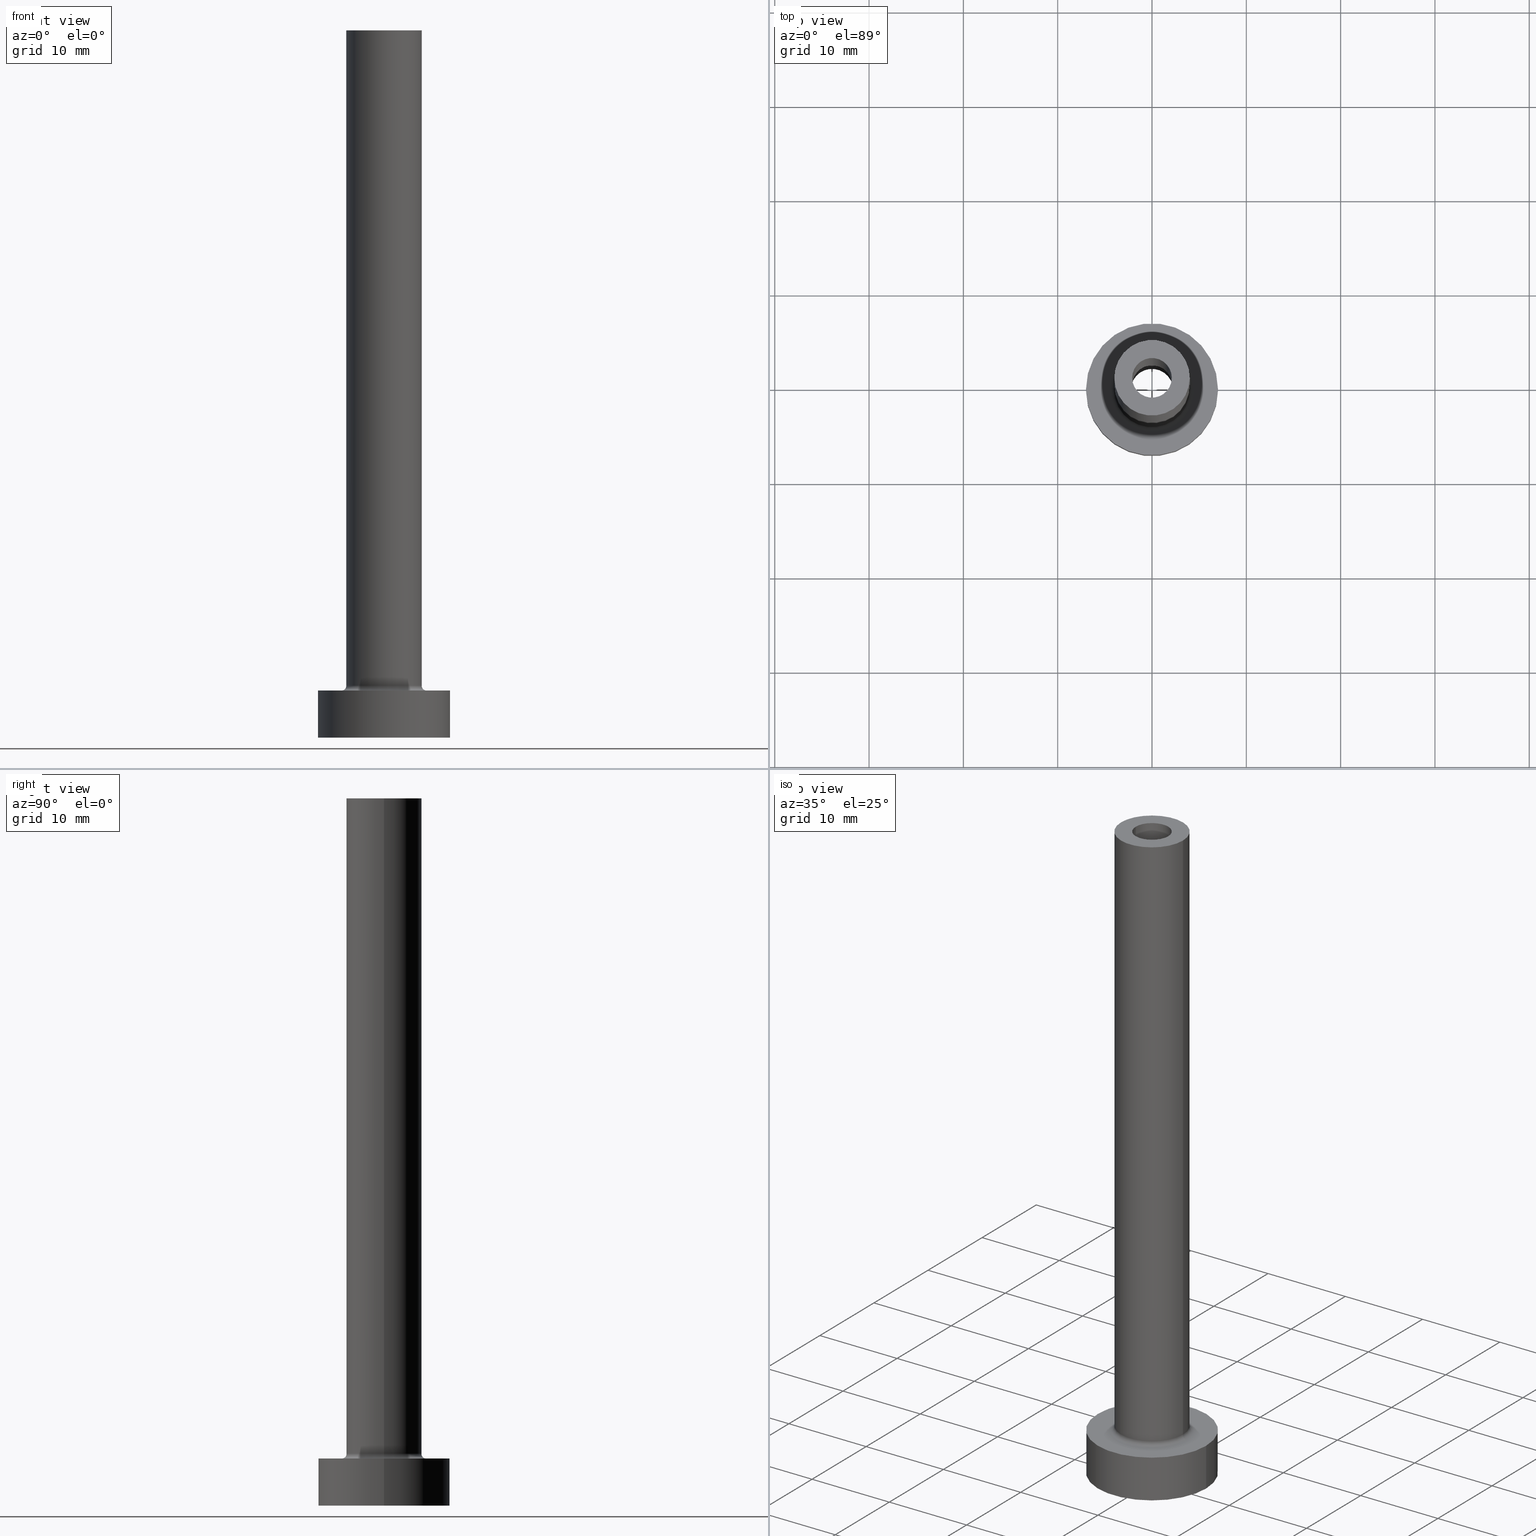
[diagram: canonical four-view strip — front | top / right | iso, engineering-drawing reading convention]
A machine part, canonical four-view strip (front | top / right | iso — engineering-drawing reading convention). The complete STEP part file that produces these views, byte-faithful:
ISO-10303-21;
HEADER;
FILE_DESCRIPTION (( 'STEP AP203' ),
    '1' );
FILE_NAME ('7ac6.STEP',
    '2023-02-13T11:08:08',
    ( '' ),
    ( '' ),
    'SwSTEP 2.0',
    'SolidWorks 2019',
    '' );
FILE_SCHEMA (( 'CONFIG_CONTROL_DESIGN' ));
ENDSEC;

DATA;
#1 = CARTESIAN_POINT ( 'NONE',  ( 0.000000000000000000, 0.000000000000000000, 5.500000000000005329 ) ) ;
#2 = PLANE ( 'NONE',  #117 ) ;
#3 = DIRECTION ( 'NONE',  ( -0.000000000000000000, -0.000000000000000000, -1.000000000000000000 ) ) ;
#4 = ORIENTED_EDGE ( 'NONE', *, *, #248, .F. ) ;
#5 = CLOSED_SHELL ( 'NONE', ( #272, #424, #433, #118, #311, #87, #226, #72, #144, #410, #359, #362, #54, #32 ) ) ;
#6 = ORIENTED_EDGE ( 'NONE', *, *, #180, .F. ) ;
#7 = CIRCLE ( 'NONE', #455, 0.5000000000000004441 ) ;
#8 = CALENDAR_DATE ( 2023, 13, 2 ) ;
#9 = CARTESIAN_POINT ( 'NONE',  ( 0.000000000000000000, 0.000000000000000000, 75.00000000000001421 ) ) ;
#10 = DIRECTION ( 'NONE',  ( 0.000000000000000000, 0.000000000000000000, -1.000000000000000000 ) ) ;
#11 = EDGE_CURVE ( 'NONE', #375, #208, #232, .T. ) ;
#12 = DIRECTION ( 'NONE',  ( -1.000000000000000000, 0.000000000000000000, 0.000000000000000000 ) ) ;
#13 = AXIS2_PLACEMENT_3D ( 'NONE', #141, #327, #408 ) ;
#14 = EDGE_CURVE ( 'NONE', #47, #456, #343, .T. ) ;
#15 = ORIENTED_EDGE ( 'NONE', *, *, #459, .F. ) ;
#16 = VERTEX_POINT ( 'NONE', #176 ) ;
#17 = CIRCLE ( 'NONE', #411, 2.100000000000000089 ) ;
#18 = AXIS2_PLACEMENT_3D ( 'NONE', #86, #168, #460 ) ;
#19 = ORIENTED_EDGE ( 'NONE', *, *, #49, .T. ) ;
#20 = ORIENTED_EDGE ( 'NONE', *, *, #112, .F. ) ;
#21 = CARTESIAN_POINT ( 'NONE',  ( -4.500000000000000888, 5.510910596163089556E-16, 5.500000000000005329 ) ) ;
#22 = DATE_AND_TIME ( #103, #39 ) ;
#23 = EDGE_CURVE ( 'NONE', #314, #198, #58, .T. ) ;
#24 = FACE_OUTER_BOUND ( 'NONE', #320, .T. ) ;
#25 = TOROIDAL_SURFACE ( 'NONE', #119, 4.500000000000000888, 0.5000000000000000000 ) ;
#26 = PRODUCT_DEFINITION ( 'NEZN�M�', '', #335, #441 ) ;
#27 = CARTESIAN_POINT ( 'NONE',  ( 0.000000000000000000, 0.000000000000000000, 5.500000000000005329 ) ) ;
#28 = CARTESIAN_POINT ( 'NONE',  ( 0.000000000000000000, 0.000000000000000000, 75.00000000000001421 ) ) ;
#29 = PERSON_AND_ORGANIZATION ( #246, #60 ) ;
#30 = FACE_BOUND ( 'NONE', #425, .T. ) ;
#31 = DIRECTION ( 'NONE',  ( 0.000000000000000000, 0.000000000000000000, 1.000000000000000000 ) ) ;
#32 = ADVANCED_FACE ( 'NONE', ( #24 ), #391, .F. ) ;
#33 = ORIENTED_EDGE ( 'NONE', *, *, #297, .F. ) ;
#34 = APPLICATION_PROTOCOL_DEFINITION ( 'international standard', 'config_control_design', 1994, #150 ) ;
#35 = DIRECTION ( 'NONE',  ( 1.000000000000000000, 0.000000000000000000, 0.000000000000000000 ) ) ;
#36 = CARTESIAN_POINT ( 'NONE',  ( 0.000000000000000000, 0.000000000000000000, 0.000000000000000000 ) ) ;
#37 = ORIENTED_EDGE ( 'NONE', *, *, #124, .T. ) ;
#38 = CYLINDRICAL_SURFACE ( 'NONE', #77, 4.000000000000000000 ) ;
#39 = LOCAL_TIME ( 12, 8, 8.000000000000000000, #432 ) ;
#40 = EDGE_CURVE ( 'NONE', #93, #303, #160, .T. ) ;
#41 = DIRECTION ( 'NONE',  ( 0.000000000000000000, -1.000000000000000000, 0.000000000000000000 ) ) ;
#42 = PERSON_AND_ORGANIZATION ( #246, #60 ) ;
#43 = CARTESIAN_POINT ( 'NONE',  ( 2.250000000000000000, 2.755455298081544285E-16, 0.000000000000000000 ) ) ;
#44 = EDGE_CURVE ( 'NONE', #303, #93, #165, .T. ) ;
#45 = ORIENTED_EDGE ( 'NONE', *, *, #142, .F. ) ;
#46 = AXIS2_PLACEMENT_3D ( 'NONE', #231, #78, #35 ) ;
#47 = VERTEX_POINT ( 'NONE', #385 ) ;
#48 = ORIENTED_EDGE ( 'NONE', *, *, #269, .F. ) ;
#49 = EDGE_CURVE ( 'NONE', #357, #198, #301, .T. ) ;
#50 = ORIENTED_EDGE ( 'NONE', *, *, #236, .T. ) ;
#51 = AXIS2_PLACEMENT_3D ( 'NONE', #454, #92, #88 ) ;
#52 = CARTESIAN_POINT ( 'NONE',  ( 0.000000000000000000, 0.000000000000000000, 5.500000000000005329 ) ) ;
#53 = EDGE_LOOP ( 'NONE', ( #344, #361 ) ) ;
#54 = ADVANCED_FACE ( 'NONE', ( #30, #218 ), #2, .F. ) ;
#55 = DIRECTION ( 'NONE',  ( 0.000000000000000000, 0.000000000000000000, 1.000000000000000000 ) ) ;
#56 = EDGE_CURVE ( 'NONE', #47, #428, #270, .T. ) ;
#57 =( NAMED_UNIT ( * ) PLANE_ANGLE_UNIT ( ) SI_UNIT ( $, .RADIAN. ) );
#58 = CIRCLE ( 'NONE', #277, 0.5000000000000004441 ) ;
#59 = DIRECTION ( 'NONE',  ( 1.000000000000000000, 0.000000000000000000, 0.000000000000000000 ) ) ;
#60 = ORGANIZATION ( 'NEUR�EN�', 'NEUR�EN�', '' ) ;
#61 = PRODUCT_RELATED_PRODUCT_CATEGORY ( 'detail', '', ( #213 ) ) ;
#62 = DIRECTION ( 'NONE',  ( -1.000000000000000000, 0.000000000000000000, 0.000000000000000000 ) ) ;
#63 = DIRECTION ( 'NONE',  ( 0.000000000000000000, 0.000000000000000000, 1.000000000000000000 ) ) ;
#64 = ORIENTED_EDGE ( 'NONE', *, *, #206, .F. ) ;
#65 = DIRECTION ( 'NONE',  ( -1.000000000000000000, 0.000000000000000000, 0.000000000000000000 ) ) ;
#66 = DIRECTION ( 'NONE',  ( 1.000000000000000000, 0.000000000000000000, 0.000000000000000000 ) ) ;
#67 = CIRCLE ( 'NONE', #238, 7.000000000000000000 ) ;
#68 = LOCAL_TIME ( 12, 8, 8.000000000000000000, #230 ) ;
#69 = ORIENTED_EDGE ( 'NONE', *, *, #449, .T. ) ;
#70 = ORIENTED_EDGE ( 'NONE', *, *, #248, .T. ) ;
#71 = DATE_TIME_ROLE ( 'creation_date' ) ;
#72 = ADVANCED_FACE ( 'NONE', ( #283, #281 ), #317, .F. ) ;
#73 = CARTESIAN_POINT ( 'NONE',  ( 2.100000000000000089, 2.571758278209441464E-16, 75.00000000000001421 ) ) ;
#74 = EDGE_LOOP ( 'NONE', ( #70, #97 ) ) ;
#75 = DATE_AND_TIME ( #8, #161 ) ;
#76 = CARTESIAN_POINT ( 'NONE',  ( 4.500000000000000888, 0.000000000000000000, 5.500000000000005329 ) ) ;
#77 = AXIS2_PLACEMENT_3D ( 'NONE', #110, #184, #12 ) ;
#78 = DIRECTION ( 'NONE',  ( -0.000000000000000000, -0.000000000000000000, -1.000000000000000000 ) ) ;
#79 = DIRECTION ( 'NONE',  ( 0.000000000000000000, 0.000000000000000000, -1.000000000000000000 ) ) ;
#80 = EDGE_LOOP ( 'NONE', ( #257, #324, #291, #373 ) ) ;
#81 = FACE_OUTER_BOUND ( 'NONE', #274, .T. ) ;
#82 = DIRECTION ( 'NONE',  ( -0.000000000000000000, -0.000000000000000000, -1.000000000000000000 ) ) ;
#83 = ORIENTED_EDGE ( 'NONE', *, *, #40, .F. ) ;
#84 = CIRCLE ( 'NONE', #353, 2.100000000000000089 ) ;
#85 = AXIS2_PLACEMENT_3D ( 'NONE', #384, #280, #125 ) ;
#86 = CARTESIAN_POINT ( 'NONE',  ( 0.000000000000000000, 0.000000000000000000, 75.00000000000001421 ) ) ;
#87 = ADVANCED_FACE ( 'NONE', ( #136 ), #427, .T. ) ;
#88 = DIRECTION ( 'NONE',  ( 1.000000000000000000, 0.000000000000000000, -0.000000000000000000 ) ) ;
#89 = EDGE_CURVE ( 'NONE', #254, #16, #17, .T. ) ;
#90 = DIRECTION ( 'NONE',  ( 0.000000000000000000, 0.000000000000000000, 1.000000000000000000 ) ) ;
#91 = FACE_OUTER_BOUND ( 'NONE', #452, .T. ) ;
#92 = DIRECTION ( 'NONE',  ( 0.000000000000000000, 0.000000000000000000, 1.000000000000000000 ) ) ;
#93 = VERTEX_POINT ( 'NONE', #256 ) ;
#94 = LINE ( 'NONE', #249, #224 ) ;
#95 = CC_DESIGN_APPROVAL ( #404, ( #335 ) ) ;
#96 = DIRECTION ( 'NONE',  ( 0.000000000000000000, 0.000000000000000000, 1.000000000000000000 ) ) ;
#97 = ORIENTED_EDGE ( 'NONE', *, *, #11, .T. ) ;
#98 = CC_DESIGN_DATE_AND_TIME_ASSIGNMENT ( #107, #71, ( #26 ) ) ;
#99 = CARTESIAN_POINT ( 'NONE',  ( 0.000000000000000000, 0.000000000000000000, 30.00000000000001421 ) ) ;
#100 = DIRECTION ( 'NONE',  ( 1.000000000000000000, 0.000000000000000000, 0.000000000000000000 ) ) ;
#101 = ORIENTED_EDGE ( 'NONE', *, *, #197, .T. ) ;
#102 = EDGE_LOOP ( 'NONE', ( #389, #15 ) ) ;
#103 = CALENDAR_DATE ( 2023, 13, 2 ) ;
#104 = DIRECTION ( 'NONE',  ( 0.000000000000000000, 0.000000000000000000, 1.000000000000000000 ) ) ;
#105 = ADVANCED_BREP_SHAPE_REPRESENTATION ( '7ac6', ( #306, #339 ), #188 ) ;
#106 = ORIENTED_EDGE ( 'NONE', *, *, #430, .T. ) ;
#107 = DATE_AND_TIME ( #189, #68 ) ;
#108 = CC_DESIGN_PERSON_AND_ORGANIZATION_ASSIGNMENT ( #140, #219, ( #213 ) ) ;
#109 = LINE ( 'NONE', #187, #397 ) ;
#110 = CARTESIAN_POINT ( 'NONE',  ( 0.000000000000000000, 0.000000000000000000, 75.00000000000001421 ) ) ;
#111 = VECTOR ( 'NONE', #10, 1000.000000000000000 ) ;
#112 = EDGE_CURVE ( 'NONE', #127, #209, #84, .T. ) ;
#113 = SECURITY_CLASSIFICATION_LEVEL ( 'unclassified' ) ;
#114 = DIRECTION ( 'NONE',  ( 0.000000000000000000, 0.000000000000000000, -1.000000000000000000 ) ) ;
#115 = CARTESIAN_POINT ( 'NONE',  ( 4.000000000000000000, 4.898587196589412829E-16, 75.00000000000001421 ) ) ;
#116 = CIRCLE ( 'NONE', #46, 2.250000000000000000 ) ;
#117 = AXIS2_PLACEMENT_3D ( 'NONE', #417, #96, #323 ) ;
#118 = ADVANCED_FACE ( 'NONE', ( #126 ), #278, .T. ) ;
#119 = AXIS2_PLACEMENT_3D ( 'NONE', #27, #90, #418 ) ;
#120 = DIRECTION ( 'NONE',  ( -0.000000000000000000, -0.000000000000000000, -1.000000000000000000 ) ) ;
#121 = ORIENTED_EDGE ( 'NONE', *, *, #206, .T. ) ;
#122 = DIRECTION ( 'NONE',  ( 0.000000000000000000, 0.000000000000000000, 1.000000000000000000 ) ) ;
#123 = CIRCLE ( 'NONE', #85, 4.000000000000000000 ) ;
#124 = EDGE_CURVE ( 'NONE', #392, #201, #67, .T. ) ;
#125 = DIRECTION ( 'NONE',  ( 1.000000000000000000, 0.000000000000000000, 0.000000000000000000 ) ) ;
#126 = FACE_OUTER_BOUND ( 'NONE', #139, .T. ) ;
#127 = VERTEX_POINT ( 'NONE', #73 ) ;
#128 = MECHANICAL_CONTEXT ( 'NONE', #150, 'mechanical' ) ;
#129 = DIRECTION ( 'NONE',  ( 0.000000000000000000, 0.000000000000000000, -1.000000000000000000 ) ) ;
#130 = DIRECTION ( 'NONE',  ( 0.000000000000000000, 0.000000000000000000, 1.000000000000000000 ) ) ;
#131 = CARTESIAN_POINT ( 'NONE',  ( 0.000000000000000000, 0.000000000000000000, 36.36396103067894359 ) ) ;
#132 = DIRECTION ( 'NONE',  ( 1.000000000000000000, 0.000000000000000000, 0.000000000000000000 ) ) ;
#133 = EDGE_LOOP ( 'NONE', ( #401, #244, #202, #240 ) ) ;
#134 = CARTESIAN_POINT ( 'NONE',  ( 0.000000000000000000, 0.000000000000000000, 36.36396103067894359 ) ) ;
#135 = APPROVAL_PERSON_ORGANIZATION ( #42, #177, #370 ) ;
#136 = FACE_OUTER_BOUND ( 'NONE', #162, .T. ) ;
#137 = ORIENTED_EDGE ( 'NONE', *, *, #56, .T. ) ;
#138 = CARTESIAN_POINT ( 'NONE',  ( 0.000000000000000000, 0.000000000000000000, 5.000000000000000000 ) ) ;
#139 = EDGE_LOOP ( 'NONE', ( #204, #289, #185, #48 ) ) ;
#140 = PERSON_AND_ORGANIZATION ( #246, #60 ) ;
#141 = CARTESIAN_POINT ( 'NONE',  ( 0.000000000000000000, 0.000000000000000000, 75.00000000000001421 ) ) ;
#142 = EDGE_CURVE ( 'NONE', #201, #392, #195, .T. ) ;
#143 = PERSON_AND_ORGANIZATION_ROLE ( 'classification_officer' ) ;
#144 = ADVANCED_FACE ( 'NONE', ( #400 ), #38, .T. ) ;
#145 = AXIS2_PLACEMENT_3D ( 'NONE', #371, #79, #376 ) ;
#146 = EDGE_LOOP ( 'NONE', ( #45, #451 ) ) ;
#147 = DIRECTION ( 'NONE',  ( 0.000000000000000000, 0.000000000000000000, 1.000000000000000000 ) ) ;
#148 = DIRECTION ( 'NONE',  ( 0.000000000000000000, 0.000000000000000000, -1.000000000000000000 ) ) ;
#149 = CARTESIAN_POINT ( 'NONE',  ( 0.000000000000000000, 0.000000000000000000, 75.00000000000001421 ) ) ;
#150 = APPLICATION_CONTEXT ( 'configuration controlled 3d designs of mechanical parts and assemblies' ) ;
#151 = AXIS2_PLACEMENT_3D ( 'NONE', #169, #212, #352 ) ;
#152 = CIRCLE ( 'NONE', #295, 4.500000000000000888 ) ;
#153 = APPROVAL_STATUS ( 'not_yet_approved' ) ;
#154 = ORIENTED_EDGE ( 'NONE', *, *, #449, .F. ) ;
#155 = DIRECTION ( 'NONE',  ( 1.000000000000000000, 0.000000000000000000, 0.000000000000000000 ) ) ;
#156 = EDGE_LOOP ( 'NONE', ( #19, #69 ) ) ;
#157 = EDGE_CURVE ( 'NONE', #456, #247, #116, .T. ) ;
#158 = DIRECTION ( 'NONE',  ( -1.000000000000000000, 0.000000000000000000, 0.000000000000000000 ) ) ;
#159 = ORIENTED_EDGE ( 'NONE', *, *, #446, .T. ) ;
#160 = CIRCLE ( 'NONE', #174, 7.000000000000000000 ) ;
#161 = LOCAL_TIME ( 12, 8, 8.000000000000000000, #267 ) ;
#162 = EDGE_LOOP ( 'NONE', ( #6, #83, #106, #163 ) ) ;
#163 = ORIENTED_EDGE ( 'NONE', *, *, #142, .T. ) ;
#164 = DIRECTION ( 'NONE',  ( 0.000000000000000000, 0.000000000000000000, 1.000000000000000000 ) ) ;
#165 = CIRCLE ( 'NONE', #285, 7.000000000000000000 ) ;
#166 = VECTOR ( 'NONE', #120, 1000.000000000000000 ) ;
#167 = APPROVAL_DATE_TIME ( #22, #412 ) ;
#168 = DIRECTION ( 'NONE',  ( 0.000000000000000000, 0.000000000000000000, 1.000000000000000000 ) ) ;
#169 = CARTESIAN_POINT ( 'NONE',  ( 0.000000000000000000, 0.000000000000000000, 5.000000000000000000 ) ) ;
#170 = DIRECTION ( 'NONE',  ( 1.000000000000000000, 0.000000000000000000, 0.000000000000000000 ) ) ;
#171 = CARTESIAN_POINT ( 'NONE',  ( -2.250000000000000000, 0.000000000000000000, 36.36396103067894359 ) ) ;
#172 = CYLINDRICAL_SURFACE ( 'NONE', #214, 2.250000000000000000 ) ;
#173 = CARTESIAN_POINT ( 'NONE',  ( 0.000000000000000000, 0.000000000000000000, 30.00000000000001421 ) ) ;
#174 = AXIS2_PLACEMENT_3D ( 'NONE', #138, #349, #132 ) ;
#175 = CIRCLE ( 'NONE', #329, 2.100000000000000089 ) ;
#176 = CARTESIAN_POINT ( 'NONE',  ( 2.100000000000000089, 2.571758278209441464E-16, 30.00000000000001421 ) ) ;
#177 = APPROVAL ( #407, 'NEUR�EN�' ) ;
#178 = APPLICATION_CONTEXT ( 'configuration controlled 3d designs of mechanical parts and assemblies' ) ;
#179 = ORIENTED_EDGE ( 'NONE', *, *, #279, .F. ) ;
#180 = EDGE_CURVE ( 'NONE', #303, #392, #228, .T. ) ;
#181 = CARTESIAN_POINT ( 'NONE',  ( -4.000000000000000000, 0.000000000000000000, 75.00000000000001421 ) ) ;
#182 = ORIENTED_EDGE ( 'NONE', *, *, #430, .F. ) ;
#183 = PERSON_AND_ORGANIZATION ( #246, #60 ) ;
#184 = DIRECTION ( 'NONE',  ( -0.000000000000000000, -0.000000000000000000, -1.000000000000000000 ) ) ;
#185 = ORIENTED_EDGE ( 'NONE', *, *, #279, .T. ) ;
#186 = PERSON_AND_ORGANIZATION ( #246, #60 ) ;
#187 = CARTESIAN_POINT ( 'NONE',  ( 2.100000000000000089, 2.571758278209441464E-16, 75.00000000000001421 ) ) ;
#188 =( GEOMETRIC_REPRESENTATION_CONTEXT ( 3 ) GLOBAL_UNCERTAINTY_ASSIGNED_CONTEXT ( ( #288 ) ) GLOBAL_UNIT_ASSIGNED_CONTEXT ( ( #429, #57, #215 ) ) REPRESENTATION_CONTEXT ( 'NONE', 'WORKASPACE' ) );
#189 = CALENDAR_DATE ( 2023, 13, 2 ) ;
#190 = CARTESIAN_POINT ( 'NONE',  ( -4.500000000000000888, 5.510910596163088569E-16, 5.000000000000002665 ) ) ;
#191 = CALENDAR_DATE ( 2023, 13, 2 ) ;
#192 = DIRECTION ( 'NONE',  ( 0.000000000000000000, 0.000000000000000000, 1.000000000000000000 ) ) ;
#193 = COORDINATED_UNIVERSAL_TIME_OFFSET ( 1, 0, .AHEAD. ) ;
#194 = ORIENTED_EDGE ( 'NONE', *, *, #199, .T. ) ;
#195 = CIRCLE ( 'NONE', #453, 7.000000000000000000 ) ;
#196 = AXIS2_PLACEMENT_3D ( 'NONE', #445, #336, #155 ) ;
#197 = EDGE_CURVE ( 'NONE', #16, #254, #175, .T. ) ;
#198 = VERTEX_POINT ( 'NONE', #190 ) ;
#199 = EDGE_CURVE ( 'NONE', #428, #247, #437, .T. ) ;
#200 = CYLINDRICAL_SURFACE ( 'NONE', #346, 7.000000000000000000 ) ;
#201 = VERTEX_POINT ( 'NONE', #406 ) ;
#202 = ORIENTED_EDGE ( 'NONE', *, *, #49, .F. ) ;
#203 = AXIS2_PLACEMENT_3D ( 'NONE', #210, #350, #100 ) ;
#204 = ORIENTED_EDGE ( 'NONE', *, *, #11, .F. ) ;
#205 = EDGE_LOOP ( 'NONE', ( #305, #179, #50, #154 ) ) ;
#206 = EDGE_CURVE ( 'NONE', #209, #127, #440, .T. ) ;
#207 = CARTESIAN_POINT ( 'NONE',  ( 4.000000000000000000, 4.898587196589412829E-16, 5.500000000000005329 ) ) ;
#208 = VERTEX_POINT ( 'NONE', #265 ) ;
#209 = VERTEX_POINT ( 'NONE', #296 ) ;
#210 = CARTESIAN_POINT ( 'NONE',  ( 0.000000000000000000, 0.000000000000000000, 0.000000000000000000 ) ) ;
#211 = FACE_OUTER_BOUND ( 'NONE', #80, .T. ) ;
#212 = DIRECTION ( 'NONE',  ( -0.000000000000000000, -0.000000000000000000, -1.000000000000000000 ) ) ;
#213 = PRODUCT ( '7ac6', '7ac6', '', ( #128 ) ) ;
#214 = AXIS2_PLACEMENT_3D ( 'NONE', #134, #129, #426 ) ;
#215 =( NAMED_UNIT ( * ) SI_UNIT ( $, .STERADIAN. ) SOLID_ANGLE_UNIT ( ) );
#216 = PLANE ( 'NONE',  #18 ) ;
#217 = EDGE_CURVE ( 'NONE', #127, #16, #109, .T. ) ;
#218 = FACE_OUTER_BOUND ( 'NONE', #53, .T. ) ;
#219 = PERSON_AND_ORGANIZATION_ROLE ( 'design_owner' ) ;
#220 = DIRECTION ( 'NONE',  ( 0.000000000000000000, 0.000000000000000000, -1.000000000000000000 ) ) ;
#221 = DIRECTION ( 'NONE',  ( 1.000000000000000000, 0.000000000000000000, 0.000000000000000000 ) ) ;
#222 = ORIENTED_EDGE ( 'NONE', *, *, #217, .F. ) ;
#223 = DIRECTION ( 'NONE',  ( -0.000000000000000000, -0.000000000000000000, -1.000000000000000000 ) ) ;
#224 = VECTOR ( 'NONE', #220, 1000.000000000000000 ) ;
#225 = LINE ( 'NONE', #181, #435 ) ;
#226 = ADVANCED_FACE ( 'NONE', ( #233, #367 ), #334, .T. ) ;
#227 = SHAPE_DEFINITION_REPRESENTATION ( #284, #105 ) ;
#228 = LINE ( 'NONE', #442, #403 ) ;
#229 = ORIENTED_EDGE ( 'NONE', *, *, #89, .T. ) ;
#230 = COORDINATED_UNIVERSAL_TIME_OFFSET ( 1, 0, .AHEAD. ) ;
#231 = CARTESIAN_POINT ( 'NONE',  ( 0.000000000000000000, 0.000000000000000000, 0.000000000000000000 ) ) ;
#232 = CIRCLE ( 'NONE', #365, 4.000000000000000000 ) ;
#233 = FACE_BOUND ( 'NONE', #156, .T. ) ;
#234 = CC_DESIGN_APPROVAL ( #412, ( #26 ) ) ;
#235 = DIRECTION ( 'NONE',  ( -0.000000000000000000, -0.000000000000000000, -1.000000000000000000 ) ) ;
#236 = EDGE_CURVE ( 'NONE', #378, #357, #7, .T. ) ;
#237 = DIRECTION ( 'NONE',  ( 1.000000000000000000, 0.000000000000000000, 0.000000000000000000 ) ) ;
#238 = AXIS2_PLACEMENT_3D ( 'NONE', #332, #293, #439 ) ;
#239 = TOROIDAL_SURFACE ( 'NONE', #387, 4.500000000000000888, 0.5000000000000000000 ) ;
#240 = ORIENTED_EDGE ( 'NONE', *, *, #236, .F. ) ;
#241 = CARTESIAN_POINT ( 'NONE',  ( -4.000000000000000000, 0.000000000000000000, 5.500000000000005329 ) ) ;
#242 = CC_DESIGN_PERSON_AND_ORGANIZATION_ASSIGNMENT ( #183, #326, ( #335 ) ) ;
#243 = CIRCLE ( 'NONE', #196, 2.250000000000000000 ) ;
#244 = ORIENTED_EDGE ( 'NONE', *, *, #23, .T. ) ;
#245 = CYLINDRICAL_SURFACE ( 'NONE', #355, 2.250000000000000000 ) ;
#246 = PERSON ( 'NEUR�EN�', 'NEUR�EN�', 'NEUR�EN�', ('NEUR�EN�'), ('NEUR�EN�'), ('NEUR�EN�') ) ;
#247 = VERTEX_POINT ( 'NONE', #43 ) ;
#248 = EDGE_CURVE ( 'NONE', #208, #375, #321, .T. ) ;
#249 = CARTESIAN_POINT ( 'NONE',  ( -2.100000000000000089, 0.000000000000000000, 75.00000000000001421 ) ) ;
#250 = DIRECTION ( 'NONE',  ( 0.000000000000000000, 0.000000000000000000, -1.000000000000000000 ) ) ;
#251 = APPROVAL_PERSON_ORGANIZATION ( #29, #412, #393 ) ;
#252 = FACE_OUTER_BOUND ( 'NONE', #133, .T. ) ;
#253 = DIRECTION ( 'NONE',  ( -0.000000000000000000, -0.000000000000000000, -1.000000000000000000 ) ) ;
#254 = VERTEX_POINT ( 'NONE', #271 ) ;
#255 = DIRECTION ( 'NONE',  ( 0.000000000000000000, 0.000000000000000000, 1.000000000000000000 ) ) ;
#256 = CARTESIAN_POINT ( 'NONE',  ( -7.000000000000000000, 0.000000000000000000, 5.000000000000000000 ) ) ;
#257 = ORIENTED_EDGE ( 'NONE', *, *, #199, .F. ) ;
#258 = DIRECTION ( 'NONE',  ( -1.000000000000000000, 1.224646799147351482E-16, 0.000000000000000000 ) ) ;
#259 = ORIENTED_EDGE ( 'NONE', *, *, #40, .T. ) ;
#260 = AXIS2_PLACEMENT_3D ( 'NONE', #9, #262, #298 ) ;
#261 = AXIS2_PLACEMENT_3D ( 'NONE', #52, #122, #237 ) ;
#262 = DIRECTION ( 'NONE',  ( -0.000000000000000000, -0.000000000000000000, -1.000000000000000000 ) ) ;
#263 = CC_DESIGN_PERSON_AND_ORGANIZATION_ASSIGNMENT ( #186, #143, ( #366 ) ) ;
#264 = DATE_AND_TIME ( #191, #423 ) ;
#265 = CARTESIAN_POINT ( 'NONE',  ( -4.000000000000000000, 0.000000000000000000, 75.00000000000001421 ) ) ;
#266 = ORIENTED_EDGE ( 'NONE', *, *, #44, .T. ) ;
#267 = COORDINATED_UNIVERSAL_TIME_OFFSET ( 1, 0, .AHEAD. ) ;
#268 = DIRECTION ( 'NONE',  ( 1.000000000000000000, 0.000000000000000000, 0.000000000000000000 ) ) ;
#269 = EDGE_CURVE ( 'NONE', #208, #314, #225, .T. ) ;
#270 = CIRCLE ( 'NONE', #377, 2.250000000000000000 ) ;
#271 = CARTESIAN_POINT ( 'NONE',  ( -2.100000000000000089, 0.000000000000000000, 30.00000000000001421 ) ) ;
#272 = ADVANCED_FACE ( 'NONE', ( #434 ), #409, .F. ) ;
#273 = CARTESIAN_POINT ( 'NONE',  ( 7.000000000000000000, 8.572527594031473190E-16, 5.000000000000000000 ) ) ;
#274 = EDGE_LOOP ( 'NONE', ( #396, #448, #37, #182 ) ) ;
#275 = VECTOR ( 'NONE', #223, 1000.000000000000000 ) ;
#276 = CC_DESIGN_PERSON_AND_ORGANIZATION_ASSIGNMENT ( #312, #358, ( #26 ) ) ;
#277 = AXIS2_PLACEMENT_3D ( 'NONE', #21, #313, #258 ) ;
#278 = CYLINDRICAL_SURFACE ( 'NONE', #260, 4.000000000000000000 ) ;
#279 = EDGE_CURVE ( 'NONE', #378, #314, #379, .T. ) ;
#280 = DIRECTION ( 'NONE',  ( 0.000000000000000000, 0.000000000000000000, 1.000000000000000000 ) ) ;
#281 = FACE_OUTER_BOUND ( 'NONE', #146, .T. ) ;
#282 = EDGE_CURVE ( 'NONE', #428, #47, #243, .T. ) ;
#283 = FACE_BOUND ( 'NONE', #102, .T. ) ;
#284 = PRODUCT_DEFINITION_SHAPE ( 'NONE', 'NONE',  #26 ) ;
#285 = AXIS2_PLACEMENT_3D ( 'NONE', #287, #130, #382 ) ;
#286 = LOCAL_TIME ( 12, 8, 8.000000000000000000, #331 ) ;
#287 = CARTESIAN_POINT ( 'NONE',  ( 0.000000000000000000, 0.000000000000000000, 5.000000000000000000 ) ) ;
#288 = UNCERTAINTY_MEASURE_WITH_UNIT (LENGTH_MEASURE( 1.000000000000000082E-05 ), #429, 'distance_accuracy_value', 'NONE');
#289 = ORIENTED_EDGE ( 'NONE', *, *, #297, .T. ) ;
#290 = CARTESIAN_POINT ( 'NONE',  ( 0.000000000000000000, 0.000000000000000000, 75.00000000000001421 ) ) ;
#291 = ORIENTED_EDGE ( 'NONE', *, *, #14, .T. ) ;
#292 = APPROVAL_STATUS ( 'not_yet_approved' ) ;
#293 = DIRECTION ( 'NONE',  ( 0.000000000000000000, 0.000000000000000000, 1.000000000000000000 ) ) ;
#294 = PERSON_AND_ORGANIZATION ( #246, #60 ) ;
#295 = AXIS2_PLACEMENT_3D ( 'NONE', #390, #316, #383 ) ;
#296 = CARTESIAN_POINT ( 'NONE',  ( -2.100000000000000089, 0.000000000000000000, 75.00000000000001421 ) ) ;
#297 = EDGE_CURVE ( 'NONE', #375, #378, #304, .T. ) ;
#298 = DIRECTION ( 'NONE',  ( -1.000000000000000000, 0.000000000000000000, 0.000000000000000000 ) ) ;
#299 = CC_DESIGN_SECURITY_CLASSIFICATION ( #366, ( #335 ) ) ;
#300 = DATE_AND_TIME ( #443, #286 ) ;
#301 = CIRCLE ( 'NONE', #151, 4.500000000000000888 ) ;
#302 = DIRECTION ( 'NONE',  ( 1.000000000000000000, 0.000000000000000000, 0.000000000000000000 ) ) ;
#303 = VERTEX_POINT ( 'NONE', #273 ) ;
#304 = LINE ( 'NONE', #115, #166 ) ;
#305 = ORIENTED_EDGE ( 'NONE', *, *, #23, .F. ) ;
#306 = MANIFOLD_SOLID_BREP ( 'Odebrat vysunut�m4', #5 ) ;
#307 = APPROVAL_PERSON_ORGANIZATION ( #294, #404, #438 ) ;
#308 = CARTESIAN_POINT ( 'NONE',  ( -7.000000000000000000, 0.000000000000000000, 5.000000000000000000 ) ) ;
#309 = DIRECTION ( 'NONE',  ( 1.000000000000000000, 0.000000000000000000, 0.000000000000000000 ) ) ;
#310 = AXIS2_PLACEMENT_3D ( 'NONE', #330, #369, #402 ) ;
#311 = ADVANCED_FACE ( 'NONE', ( #81 ), #200, .T. ) ;
#312 = PERSON_AND_ORGANIZATION ( #246, #60 ) ;
#313 = DIRECTION ( 'NONE',  ( 1.224646799147353207E-16, 1.000000000000000000, -0.000000000000000000 ) ) ;
#314 = VERTEX_POINT ( 'NONE', #241 ) ;
#315 = DIRECTION ( 'NONE',  ( 0.000000000000000000, 0.000000000000000000, 1.000000000000000000 ) ) ;
#316 = DIRECTION ( 'NONE',  ( -0.000000000000000000, -0.000000000000000000, -1.000000000000000000 ) ) ;
#317 = PLANE ( 'NONE',  #51 ) ;
#318 = CC_DESIGN_PERSON_AND_ORGANIZATION_ASSIGNMENT ( #405, #436, ( #335 ) ) ;
#319 = VECTOR ( 'NONE', #461, 1000.000000000000000 ) ;
#320 = EDGE_LOOP ( 'NONE', ( #222, #381, #159, #431 ) ) ;
#321 = CIRCLE ( 'NONE', #388, 4.000000000000000000 ) ;
#322 = DIRECTION ( 'NONE',  ( 1.000000000000000000, 0.000000000000000000, 0.000000000000000000 ) ) ;
#323 = DIRECTION ( 'NONE',  ( 1.000000000000000000, 0.000000000000000000, -0.000000000000000000 ) ) ;
#324 = ORIENTED_EDGE ( 'NONE', *, *, #282, .T. ) ;
#325 = CARTESIAN_POINT ( 'NONE',  ( 0.000000000000000000, 0.000000000000000000, 30.00000000000001421 ) ) ;
#326 = PERSON_AND_ORGANIZATION_ROLE ( 'design_supplier' ) ;
#327 = DIRECTION ( 'NONE',  ( 0.000000000000000000, 0.000000000000000000, 1.000000000000000000 ) ) ;
#328 = AXIS2_PLACEMENT_3D ( 'NONE', #420, #250, #458 ) ;
#329 = AXIS2_PLACEMENT_3D ( 'NONE', #325, #192, #268 ) ;
#330 = CARTESIAN_POINT ( 'NONE',  ( 0.000000000000000000, 0.000000000000000000, 5.000000000000000000 ) ) ;
#331 = COORDINATED_UNIVERSAL_TIME_OFFSET ( 1, 0, .AHEAD. ) ;
#332 = CARTESIAN_POINT ( 'NONE',  ( 0.000000000000000000, 0.000000000000000000, 0.000000000000000000 ) ) ;
#333 = CC_DESIGN_APPROVAL ( #177, ( #366 ) ) ;
#334 = PLANE ( 'NONE',  #310 ) ;
#335 = PRODUCT_DEFINITION_FORMATION_WITH_SPECIFIED_SOURCE ( 'LIBOVOLN�', '', #213, .NOT_KNOWN. ) ;
#336 = DIRECTION ( 'NONE',  ( 0.000000000000000000, 0.000000000000000000, 1.000000000000000000 ) ) ;
#337 = EDGE_LOOP ( 'NONE', ( #259, #266 ) ) ;
#338 = CARTESIAN_POINT ( 'NONE',  ( 0.000000000000000000, 0.000000000000000000, 5.000000000000000000 ) ) ;
#339 = AXIS2_PLACEMENT_3D ( 'NONE', #422, #255, #170 ) ;
#340 = EDGE_LOOP ( 'NONE', ( #33, #4, #444, #398 ) ) ;
#341 = EDGE_LOOP ( 'NONE', ( #64, #20 ) ) ;
#342 = LINE ( 'NONE', #308, #275 ) ;
#343 = LINE ( 'NONE', #171, #319 ) ;
#344 = ORIENTED_EDGE ( 'NONE', *, *, #56, .F. ) ;
#345 = FACE_BOUND ( 'NONE', #341, .T. ) ;
#346 = AXIS2_PLACEMENT_3D ( 'NONE', #338, #82, #158 ) ;
#347 = APPLICATION_PROTOCOL_DEFINITION ( 'international standard', 'config_control_design', 1994, #178 ) ;
#348 = FACE_OUTER_BOUND ( 'NONE', #205, .T. ) ;
#349 = DIRECTION ( 'NONE',  ( 0.000000000000000000, 0.000000000000000000, 1.000000000000000000 ) ) ;
#350 = DIRECTION ( 'NONE',  ( -0.000000000000000000, -0.000000000000000000, -1.000000000000000000 ) ) ;
#351 = CARTESIAN_POINT ( 'NONE',  ( 7.000000000000000000, 8.572527594031473190E-16, 0.000000000000000000 ) ) ;
#352 = DIRECTION ( 'NONE',  ( 1.000000000000000000, 0.000000000000000000, 0.000000000000000000 ) ) ;
#353 = AXIS2_PLACEMENT_3D ( 'NONE', #290, #63, #221 ) ;
#354 = ORIENTED_EDGE ( 'NONE', *, *, #89, .F. ) ;
#355 = AXIS2_PLACEMENT_3D ( 'NONE', #131, #380, #65 ) ;
#356 = CARTESIAN_POINT ( 'NONE',  ( 2.250000000000000000, 2.755455298081544285E-16, 30.00000000000001421 ) ) ;
#357 = VERTEX_POINT ( 'NONE', #374 ) ;
#358 = PERSON_AND_ORGANIZATION_ROLE ( 'creator' ) ;
#359 = ADVANCED_FACE ( 'NONE', ( #348 ), #239, .F. ) ;
#360 = DIRECTION ( 'NONE',  ( 1.000000000000000000, 0.000000000000000000, 0.000000000000000000 ) ) ;
#361 = ORIENTED_EDGE ( 'NONE', *, *, #282, .F. ) ;
#362 = ADVANCED_FACE ( 'NONE', ( #211 ), #172, .F. ) ;
#363 = APPROVAL_DATE_TIME ( #300, #404 ) ;
#364 = CARTESIAN_POINT ( 'NONE',  ( 2.250000000000000000, 2.755455298081544285E-16, 36.36396103067894359 ) ) ;
#365 = AXIS2_PLACEMENT_3D ( 'NONE', #28, #31, #66 ) ;
#366 = SECURITY_CLASSIFICATION ( '', '', #113 ) ;
#367 = FACE_OUTER_BOUND ( 'NONE', #337, .T. ) ;
#368 = DATE_TIME_ROLE ( 'classification_date' ) ;
#369 = DIRECTION ( 'NONE',  ( 0.000000000000000000, 0.000000000000000000, 1.000000000000000000 ) ) ;
#370 = APPROVAL_ROLE ( '' ) ;
#371 = CARTESIAN_POINT ( 'NONE',  ( 0.000000000000000000, 0.000000000000000000, 75.00000000000001421 ) ) ;
#372 = EDGE_CURVE ( 'NONE', #314, #378, #123, .T. ) ;
#373 = ORIENTED_EDGE ( 'NONE', *, *, #157, .T. ) ;
#374 = CARTESIAN_POINT ( 'NONE',  ( 4.500000000000000888, 0.000000000000000000, 5.000000000000002665 ) ) ;
#375 = VERTEX_POINT ( 'NONE', #419 ) ;
#376 = DIRECTION ( 'NONE',  ( -1.000000000000000000, 0.000000000000000000, 0.000000000000000000 ) ) ;
#377 = AXIS2_PLACEMENT_3D ( 'NONE', #173, #55, #59 ) ;
#378 = VERTEX_POINT ( 'NONE', #207 ) ;
#379 = CIRCLE ( 'NONE', #261, 4.000000000000000000 ) ;
#380 = DIRECTION ( 'NONE',  ( 0.000000000000000000, 0.000000000000000000, -1.000000000000000000 ) ) ;
#381 = ORIENTED_EDGE ( 'NONE', *, *, #112, .T. ) ;
#382 = DIRECTION ( 'NONE',  ( 1.000000000000000000, 0.000000000000000000, 0.000000000000000000 ) ) ;
#383 = DIRECTION ( 'NONE',  ( 1.000000000000000000, 0.000000000000000000, 0.000000000000000000 ) ) ;
#384 = CARTESIAN_POINT ( 'NONE',  ( 0.000000000000000000, 0.000000000000000000, 5.500000000000005329 ) ) ;
#385 = CARTESIAN_POINT ( 'NONE',  ( -2.250000000000000000, 0.000000000000000000, 30.00000000000001421 ) ) ;
#386 = AXIS2_PLACEMENT_3D ( 'NONE', #395, #253, #62 ) ;
#387 = AXIS2_PLACEMENT_3D ( 'NONE', #1, #315, #322 ) ;
#388 = AXIS2_PLACEMENT_3D ( 'NONE', #149, #104, #302 ) ;
#389 = ORIENTED_EDGE ( 'NONE', *, *, #157, .F. ) ;
#390 = CARTESIAN_POINT ( 'NONE',  ( 0.000000000000000000, 0.000000000000000000, 5.000000000000000000 ) ) ;
#391 = CYLINDRICAL_SURFACE ( 'NONE', #328, 2.100000000000000089 ) ;
#392 = VERTEX_POINT ( 'NONE', #351 ) ;
#393 = APPROVAL_ROLE ( '' ) ;
#394 = ORIENTED_EDGE ( 'NONE', *, *, #14, .F. ) ;
#395 = CARTESIAN_POINT ( 'NONE',  ( 0.000000000000000000, 0.000000000000000000, 5.000000000000000000 ) ) ;
#396 = ORIENTED_EDGE ( 'NONE', *, *, #44, .F. ) ;
#397 = VECTOR ( 'NONE', #114, 1000.000000000000000 ) ;
#398 = ORIENTED_EDGE ( 'NONE', *, *, #372, .T. ) ;
#399 = APPROVAL_DATE_TIME ( #264, #177 ) ;
#400 = FACE_OUTER_BOUND ( 'NONE', #340, .T. ) ;
#401 = ORIENTED_EDGE ( 'NONE', *, *, #372, .F. ) ;
#402 = DIRECTION ( 'NONE',  ( 1.000000000000000000, 0.000000000000000000, -0.000000000000000000 ) ) ;
#403 = VECTOR ( 'NONE', #235, 1000.000000000000000 ) ;
#404 = APPROVAL ( #153, 'NEUR�EN�' ) ;
#405 = PERSON_AND_ORGANIZATION ( #246, #60 ) ;
#406 = CARTESIAN_POINT ( 'NONE',  ( -7.000000000000000000, 0.000000000000000000, 0.000000000000000000 ) ) ;
#407 = APPROVAL_STATUS ( 'not_yet_approved' ) ;
#408 = DIRECTION ( 'NONE',  ( 1.000000000000000000, 0.000000000000000000, 0.000000000000000000 ) ) ;
#409 = CYLINDRICAL_SURFACE ( 'NONE', #145, 2.100000000000000089 ) ;
#410 = ADVANCED_FACE ( 'NONE', ( #345, #414 ), #216, .T. ) ;
#411 = AXIS2_PLACEMENT_3D ( 'NONE', #99, #164, #309 ) ;
#412 = APPROVAL ( #292, 'NEUR�EN�' ) ;
#413 = ORIENTED_EDGE ( 'NONE', *, *, #446, .F. ) ;
#414 = FACE_OUTER_BOUND ( 'NONE', #74, .T. ) ;
#415 = CIRCLE ( 'NONE', #203, 2.250000000000000000 ) ;
#416 = CC_DESIGN_DATE_AND_TIME_ASSIGNMENT ( #75, #368, ( #366 ) ) ;
#417 = CARTESIAN_POINT ( 'NONE',  ( 0.000000000000000000, 0.000000000000000000, 30.00000000000001421 ) ) ;
#418 = DIRECTION ( 'NONE',  ( 1.000000000000000000, 0.000000000000000000, 0.000000000000000000 ) ) ;
#419 = CARTESIAN_POINT ( 'NONE',  ( 4.000000000000000000, 4.898587196589412829E-16, 75.00000000000001421 ) ) ;
#420 = CARTESIAN_POINT ( 'NONE',  ( 0.000000000000000000, 0.000000000000000000, 75.00000000000001421 ) ) ;
#421 = EDGE_LOOP ( 'NONE', ( #121, #447, #354, #413 ) ) ;
#422 = CARTESIAN_POINT ( 'NONE',  ( 0.000000000000000000, 0.000000000000000000, 0.000000000000000000 ) ) ;
#423 = LOCAL_TIME ( 12, 8, 8.000000000000000000, #193 ) ;
#424 = ADVANCED_FACE ( 'NONE', ( #91 ), #245, .F. ) ;
#425 = EDGE_LOOP ( 'NONE', ( #229, #101 ) ) ;
#426 = DIRECTION ( 'NONE',  ( -1.000000000000000000, 0.000000000000000000, 0.000000000000000000 ) ) ;
#427 = CYLINDRICAL_SURFACE ( 'NONE', #386, 7.000000000000000000 ) ;
#428 = VERTEX_POINT ( 'NONE', #356 ) ;
#429 =( LENGTH_UNIT ( ) NAMED_UNIT ( * ) SI_UNIT ( .MILLI., .METRE. ) );
#430 = EDGE_CURVE ( 'NONE', #93, #201, #342, .T. ) ;
#431 = ORIENTED_EDGE ( 'NONE', *, *, #197, .F. ) ;
#432 = COORDINATED_UNIVERSAL_TIME_OFFSET ( 1, 0, .AHEAD. ) ;
#433 = ADVANCED_FACE ( 'NONE', ( #252 ), #25, .F. ) ;
#434 = FACE_OUTER_BOUND ( 'NONE', #421, .T. ) ;
#435 = VECTOR ( 'NONE', #3, 1000.000000000000000 ) ;
#436 = PERSON_AND_ORGANIZATION_ROLE ( 'creator' ) ;
#437 = LINE ( 'NONE', #364, #111 ) ;
#438 = APPROVAL_ROLE ( '' ) ;
#439 = DIRECTION ( 'NONE',  ( 1.000000000000000000, 0.000000000000000000, 0.000000000000000000 ) ) ;
#440 = CIRCLE ( 'NONE', #13, 2.100000000000000089 ) ;
#441 = DESIGN_CONTEXT ( 'detailed design', #178, 'design' ) ;
#442 = CARTESIAN_POINT ( 'NONE',  ( 7.000000000000000000, 8.572527594031473190E-16, 5.000000000000000000 ) ) ;
#443 = CALENDAR_DATE ( 2023, 13, 2 ) ;
#444 = ORIENTED_EDGE ( 'NONE', *, *, #269, .T. ) ;
#445 = CARTESIAN_POINT ( 'NONE',  ( 0.000000000000000000, 0.000000000000000000, 30.00000000000001421 ) ) ;
#446 = EDGE_CURVE ( 'NONE', #209, #254, #94, .T. ) ;
#447 = ORIENTED_EDGE ( 'NONE', *, *, #217, .T. ) ;
#448 = ORIENTED_EDGE ( 'NONE', *, *, #180, .T. ) ;
#449 = EDGE_CURVE ( 'NONE', #198, #357, #152, .T. ) ;
#450 = ORIENTED_EDGE ( 'NONE', *, *, #459, .T. ) ;
#451 = ORIENTED_EDGE ( 'NONE', *, *, #124, .F. ) ;
#452 = EDGE_LOOP ( 'NONE', ( #137, #194, #450, #394 ) ) ;
#453 = AXIS2_PLACEMENT_3D ( 'NONE', #36, #147, #360 ) ;
#454 = CARTESIAN_POINT ( 'NONE',  ( 0.000000000000000000, 0.000000000000000000, 0.000000000000000000 ) ) ;
#455 = AXIS2_PLACEMENT_3D ( 'NONE', #76, #41, #148 ) ;
#456 = VERTEX_POINT ( 'NONE', #457 ) ;
#457 = CARTESIAN_POINT ( 'NONE',  ( -2.250000000000000000, 0.000000000000000000, 0.000000000000000000 ) ) ;
#458 = DIRECTION ( 'NONE',  ( -1.000000000000000000, 0.000000000000000000, 0.000000000000000000 ) ) ;
#459 = EDGE_CURVE ( 'NONE', #247, #456, #415, .T. ) ;
#460 = DIRECTION ( 'NONE',  ( 1.000000000000000000, 0.000000000000000000, -0.000000000000000000 ) ) ;
#461 = DIRECTION ( 'NONE',  ( 0.000000000000000000, 0.000000000000000000, -1.000000000000000000 ) ) ;
ENDSEC;
END-ISO-10303-21;
